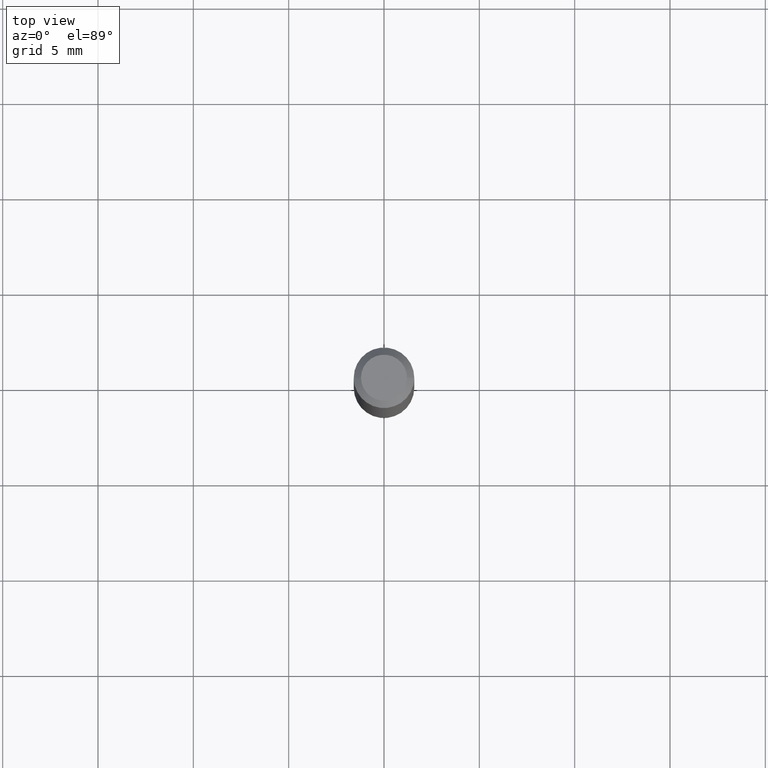
[diagram: clean part render]
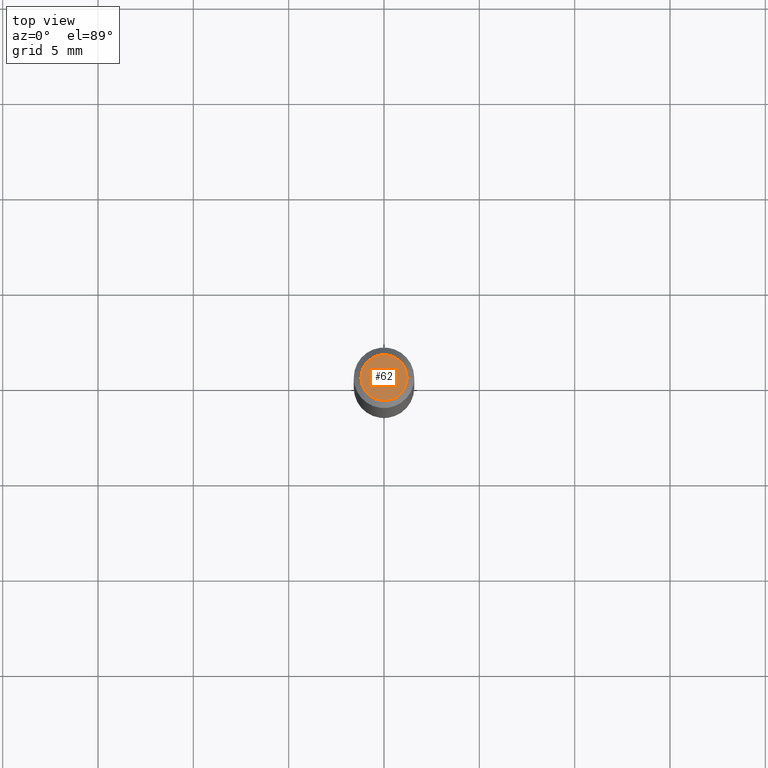
[diagram: same view with one face highlighted and labeled with its STEP entity id]
A machine part, top view. The second image highlights one B-rep face of the part: STEP entity #62.
In plain terms, the highlighted planar face has unit normal (0, -0, -1).
Its self-contained STEP definition (entity closure, byte-faithful):
#44 = DIRECTION ( 'NONE',  ( 2.438088387897960049E-29, -3.491481338843145188E-15, -1.000000000000000000 ) ) ;
#62 = ADVANCED_FACE ( 'NONE', ( #223 ), #238, .F. ) ;
#71 = DIRECTION ( 'NONE',  ( -2.445468806185136597E-29, 3.491481338843145583E-15, 1.000000000000000000 ) ) ;
#75 = CARTESIAN_POINT ( 'NONE',  ( -0.04749999999999999362, 3.578768372314212971E-16, 1.471062854863204137E-16 ) ) ;
#76 = DIRECTION ( 'NONE',  ( 1.000000000000000000, -6.982962677686267499E-15, 4.852736867747366768E-29 ) ) ;
#97 = EDGE_CURVE ( 'NONE', #224, #418, #249, .T. ) ;
#116 = DIRECTION ( 'NONE',  ( -1.000000000000000000, 6.982962677686265922E-15, -4.876176775795935793E-29 ) ) ;
#128 = EDGE_CURVE ( 'NONE', #418, #224, #210, .T. ) ;
#137 = AXIS2_PLACEMENT_3D ( 'NONE', #317, #71, #76 ) ;
#154 = CARTESIAN_POINT ( 'NONE',  ( -3.597438323505677396E-45, 5.136188506020282969E-31, 1.471062854863228050E-16 ) ) ;
#181 = ORIENTED_EDGE ( 'NONE', *, *, #97, .T. ) ;
#210 = CIRCLE ( 'NONE', #137, 0.04749999999999999362 ) ;
#223 = FACE_OUTER_BOUND ( 'NONE', #420, .T. ) ;
#224 = VERTEX_POINT ( 'NONE', #233 ) ;
#233 = CARTESIAN_POINT ( 'NONE',  ( 0.04749999999999999362, -4.035134999187575172E-16, 1.471062854863253934E-16 ) ) ;
#235 = DIRECTION ( 'NONE',  ( -2.445468806185136597E-29, 3.491481338843145583E-15, 1.000000000000000000 ) ) ;
#238 = PLANE ( 'NONE',  #326 ) ;
#249 = CIRCLE ( 'NONE', #273, 0.04749999999999999362 ) ;
#254 = ORIENTED_EDGE ( 'NONE', *, *, #128, .T. ) ;
#273 = AXIS2_PLACEMENT_3D ( 'NONE', #154, #235, #328 ) ;
#317 = CARTESIAN_POINT ( 'NONE',  ( -3.597438323505677396E-45, 5.136188506020282969E-31, 1.471062854863228050E-16 ) ) ;
#326 = AXIS2_PLACEMENT_3D ( 'NONE', #402, #44, #116 ) ;
#328 = DIRECTION ( 'NONE',  ( 1.000000000000000000, -6.982962677686267499E-15, 4.852736867747366768E-29 ) ) ;
#402 = CARTESIAN_POINT ( 'NONE',  ( 3.316907271900976096E-16, 0.04749999999999999362, -9.229222085188799396E-17 ) ) ;
#418 = VERTEX_POINT ( 'NONE', #75 ) ;
#420 = EDGE_LOOP ( 'NONE', ( #254, #181 ) ) ;